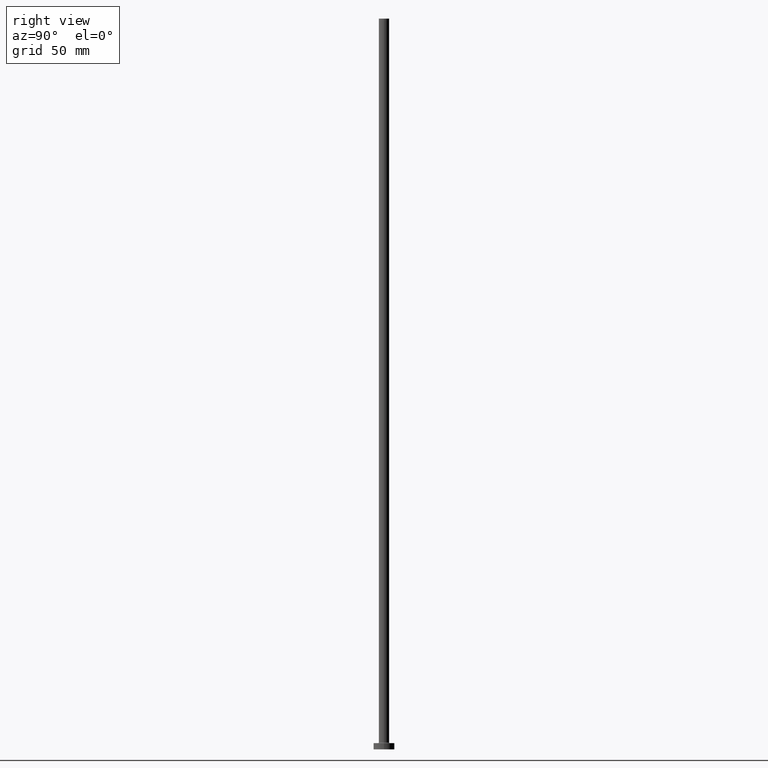
[diagram: clean part render]
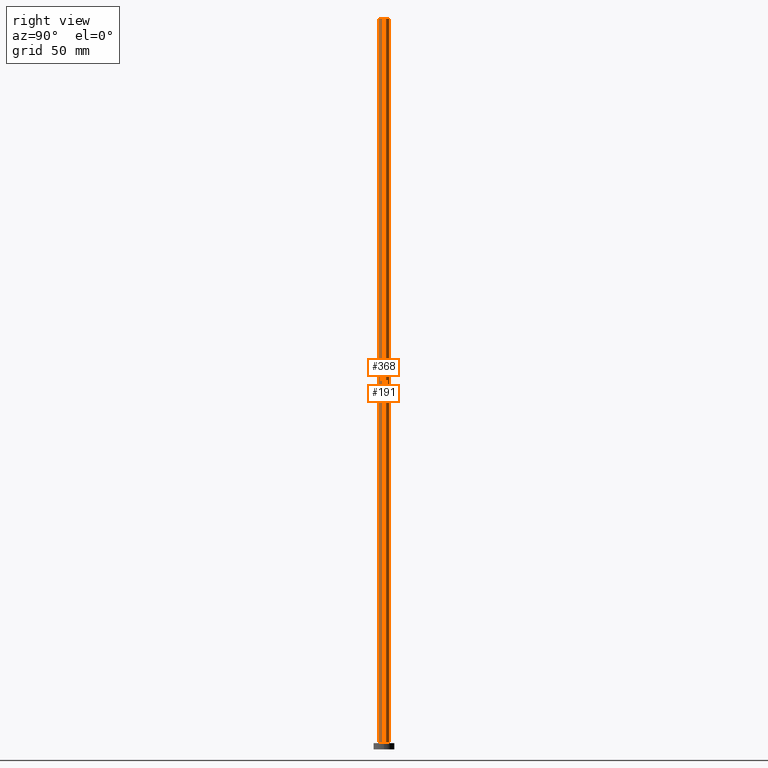
[diagram: same view with one multi-face feature highlighted, each face labeled with its STEP entity id]
A machine part, right view. The highlighted faces form ONE feature: a constant-radius fillet chain: 2 tangent blend faces with common blend radius 2.5 mm. The faces share edges in the B-rep.
Their STEP definitions:
[1] entity #368 (Cylinder):
#1 = DIRECTION ( 'NONE',  ( 1.000000000000000000, 0.000000000000000000, 0.000000000000000000 ) ) ;
#11 = VECTOR ( 'NONE', #61, 1000.000000000000000 ) ;
#18 = VERTEX_POINT ( 'NONE', #311 ) ;
#26 = AXIS2_PLACEMENT_3D ( 'NONE', #107, #326, #38 ) ;
#37 = VECTOR ( 'NONE', #365, 1000.000000000000000 ) ;
#38 = DIRECTION ( 'NONE',  ( 1.000000000000000000, 0.000000000000000000, 0.000000000000000000 ) ) ;
#47 = ORIENTED_EDGE ( 'NONE', *, *, #324, .T. ) ;
#50 = VERTEX_POINT ( 'NONE', #460 ) ;
#51 = DIRECTION ( 'NONE',  ( -1.000000000000000000, 0.000000000000000000, 0.000000000000000000 ) ) ;
#52 = CIRCLE ( 'NONE', #422, 2.500000000000000000 ) ;
#61 = DIRECTION ( 'NONE',  ( -0.000000000000000000, -0.000000000000000000, -1.000000000000000000 ) ) ;
#71 = DIRECTION ( 'NONE',  ( 0.000000000000000000, 0.000000000000000000, 1.000000000000000000 ) ) ;
#77 = CARTESIAN_POINT ( 'NONE',  ( -2.500000000000000000, 0.000000000000000000, 350.0000000000000000 ) ) ;
#88 = DIRECTION ( 'NONE',  ( -0.000000000000000000, -0.000000000000000000, -1.000000000000000000 ) ) ;
#99 = LINE ( 'NONE', #203, #11 ) ;
#107 = CARTESIAN_POINT ( 'NONE',  ( 0.000000000000000000, 0.000000000000000000, 3.300000000000025135 ) ) ;
#118 = AXIS2_PLACEMENT_3D ( 'NONE', #260, #88, #51 ) ;
#127 = EDGE_CURVE ( 'NONE', #418, #157, #99, .T. ) ;
#128 = CIRCLE ( 'NONE', #26, 2.500000000000000000 ) ;
#146 = CARTESIAN_POINT ( 'NONE',  ( 0.000000000000000000, 0.000000000000000000, 350.0000000000000000 ) ) ;
#153 = CYLINDRICAL_SURFACE ( 'NONE', #118, 2.500000000000000000 ) ;
#157 = VERTEX_POINT ( 'NONE', #246 ) ;
#203 = CARTESIAN_POINT ( 'NONE',  ( -2.500000000000000000, 0.000000000000000000, 350.0000000000000000 ) ) ;
#206 = ORIENTED_EDGE ( 'NONE', *, *, #208, .F. ) ;
#208 = EDGE_CURVE ( 'NONE', #418, #50, #52, .T. ) ;
#233 = ORIENTED_EDGE ( 'NONE', *, *, #356, .F. ) ;
#246 = CARTESIAN_POINT ( 'NONE',  ( -2.500000000000000000, 0.000000000000000000, 3.300000000000025135 ) ) ;
#250 = LINE ( 'NONE', #398, #37 ) ;
#260 = CARTESIAN_POINT ( 'NONE',  ( 0.000000000000000000, 0.000000000000000000, 350.0000000000000000 ) ) ;
#310 = ORIENTED_EDGE ( 'NONE', *, *, #127, .T. ) ;
#311 = CARTESIAN_POINT ( 'NONE',  ( 2.500000000000000000, 3.061616997868383141E-16, 3.300000000000025135 ) ) ;
#324 = EDGE_CURVE ( 'NONE', #157, #18, #128, .T. ) ;
#326 = DIRECTION ( 'NONE',  ( 0.000000000000000000, 0.000000000000000000, 1.000000000000000000 ) ) ;
#356 = EDGE_CURVE ( 'NONE', #50, #18, #250, .T. ) ;
#365 = DIRECTION ( 'NONE',  ( -0.000000000000000000, -0.000000000000000000, -1.000000000000000000 ) ) ;
#368 = ADVANCED_FACE ( 'NONE', ( #407 ), #153, .T. ) ;
#398 = CARTESIAN_POINT ( 'NONE',  ( 2.500000000000000000, 3.061616997868383141E-16, 350.0000000000000000 ) ) ;
#407 = FACE_OUTER_BOUND ( 'NONE', #449, .T. ) ;
#418 = VERTEX_POINT ( 'NONE', #77 ) ;
#422 = AXIS2_PLACEMENT_3D ( 'NONE', #146, #71, #1 ) ;
#449 = EDGE_LOOP ( 'NONE', ( #233, #206, #310, #47 ) ) ;
#460 = CARTESIAN_POINT ( 'NONE',  ( 2.500000000000000000, 3.061616997868383141E-16, 350.0000000000000000 ) ) ;
[2] entity #191 (Cylinder):
#11 = VECTOR ( 'NONE', #61, 1000.000000000000000 ) ;
#18 = VERTEX_POINT ( 'NONE', #311 ) ;
#25 = CARTESIAN_POINT ( 'NONE',  ( 0.000000000000000000, 0.000000000000000000, 3.300000000000025135 ) ) ;
#29 = EDGE_CURVE ( 'NONE', #18, #157, #248, .T. ) ;
#31 = AXIS2_PLACEMENT_3D ( 'NONE', #399, #431, #328 ) ;
#37 = VECTOR ( 'NONE', #365, 1000.000000000000000 ) ;
#50 = VERTEX_POINT ( 'NONE', #460 ) ;
#61 = DIRECTION ( 'NONE',  ( -0.000000000000000000, -0.000000000000000000, -1.000000000000000000 ) ) ;
#77 = CARTESIAN_POINT ( 'NONE',  ( -2.500000000000000000, 0.000000000000000000, 350.0000000000000000 ) ) ;
#86 = AXIS2_PLACEMENT_3D ( 'NONE', #320, #286, #166 ) ;
#99 = LINE ( 'NONE', #203, #11 ) ;
#110 = EDGE_CURVE ( 'NONE', #50, #418, #357, .T. ) ;
#127 = EDGE_CURVE ( 'NONE', #418, #157, #99, .T. ) ;
#157 = VERTEX_POINT ( 'NONE', #246 ) ;
#166 = DIRECTION ( 'NONE',  ( 1.000000000000000000, 0.000000000000000000, 0.000000000000000000 ) ) ;
#177 = CYLINDRICAL_SURFACE ( 'NONE', #31, 2.500000000000000000 ) ;
#191 = ADVANCED_FACE ( 'NONE', ( #369 ), #177, .T. ) ;
#203 = CARTESIAN_POINT ( 'NONE',  ( -2.500000000000000000, 0.000000000000000000, 350.0000000000000000 ) ) ;
#245 = ORIENTED_EDGE ( 'NONE', *, *, #110, .F. ) ;
#246 = CARTESIAN_POINT ( 'NONE',  ( -2.500000000000000000, 0.000000000000000000, 3.300000000000025135 ) ) ;
#248 = CIRCLE ( 'NONE', #461, 2.500000000000000000 ) ;
#250 = LINE ( 'NONE', #398, #37 ) ;
#286 = DIRECTION ( 'NONE',  ( 0.000000000000000000, 0.000000000000000000, 1.000000000000000000 ) ) ;
#305 = EDGE_LOOP ( 'NONE', ( #245, #336, #318, #347 ) ) ;
#311 = CARTESIAN_POINT ( 'NONE',  ( 2.500000000000000000, 3.061616997868383141E-16, 3.300000000000025135 ) ) ;
#318 = ORIENTED_EDGE ( 'NONE', *, *, #29, .T. ) ;
#320 = CARTESIAN_POINT ( 'NONE',  ( 0.000000000000000000, 0.000000000000000000, 350.0000000000000000 ) ) ;
#322 = DIRECTION ( 'NONE',  ( 0.000000000000000000, 0.000000000000000000, 1.000000000000000000 ) ) ;
#328 = DIRECTION ( 'NONE',  ( -1.000000000000000000, 0.000000000000000000, 0.000000000000000000 ) ) ;
#336 = ORIENTED_EDGE ( 'NONE', *, *, #356, .T. ) ;
#347 = ORIENTED_EDGE ( 'NONE', *, *, #127, .F. ) ;
#356 = EDGE_CURVE ( 'NONE', #50, #18, #250, .T. ) ;
#357 = CIRCLE ( 'NONE', #86, 2.500000000000000000 ) ;
#365 = DIRECTION ( 'NONE',  ( -0.000000000000000000, -0.000000000000000000, -1.000000000000000000 ) ) ;
#369 = FACE_OUTER_BOUND ( 'NONE', #305, .T. ) ;
#398 = CARTESIAN_POINT ( 'NONE',  ( 2.500000000000000000, 3.061616997868383141E-16, 350.0000000000000000 ) ) ;
#399 = CARTESIAN_POINT ( 'NONE',  ( 0.000000000000000000, 0.000000000000000000, 350.0000000000000000 ) ) ;
#418 = VERTEX_POINT ( 'NONE', #77 ) ;
#423 = DIRECTION ( 'NONE',  ( 1.000000000000000000, 0.000000000000000000, 0.000000000000000000 ) ) ;
#431 = DIRECTION ( 'NONE',  ( -0.000000000000000000, -0.000000000000000000, -1.000000000000000000 ) ) ;
#460 = CARTESIAN_POINT ( 'NONE',  ( 2.500000000000000000, 3.061616997868383141E-16, 350.0000000000000000 ) ) ;
#461 = AXIS2_PLACEMENT_3D ( 'NONE', #25, #322, #423 ) ;